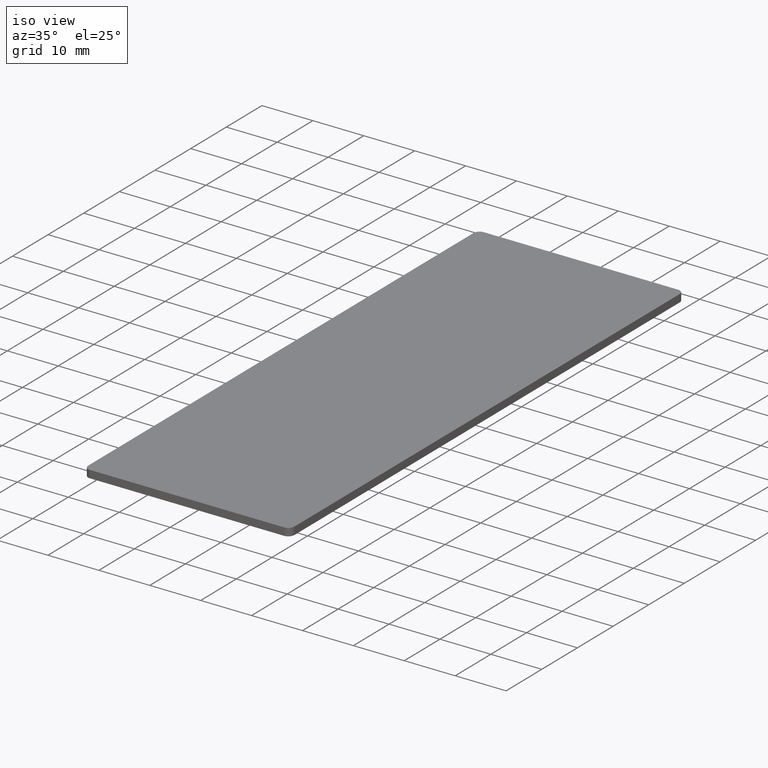
[diagram: clean part render]
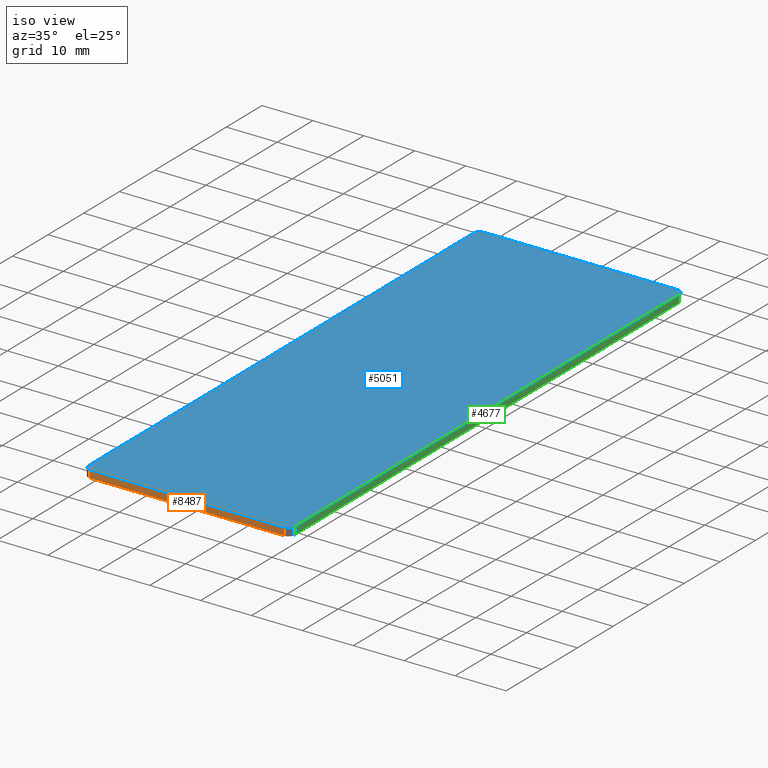
[diagram: same view with three faces highlighted in distinct colors, each labeled with its STEP entity id]
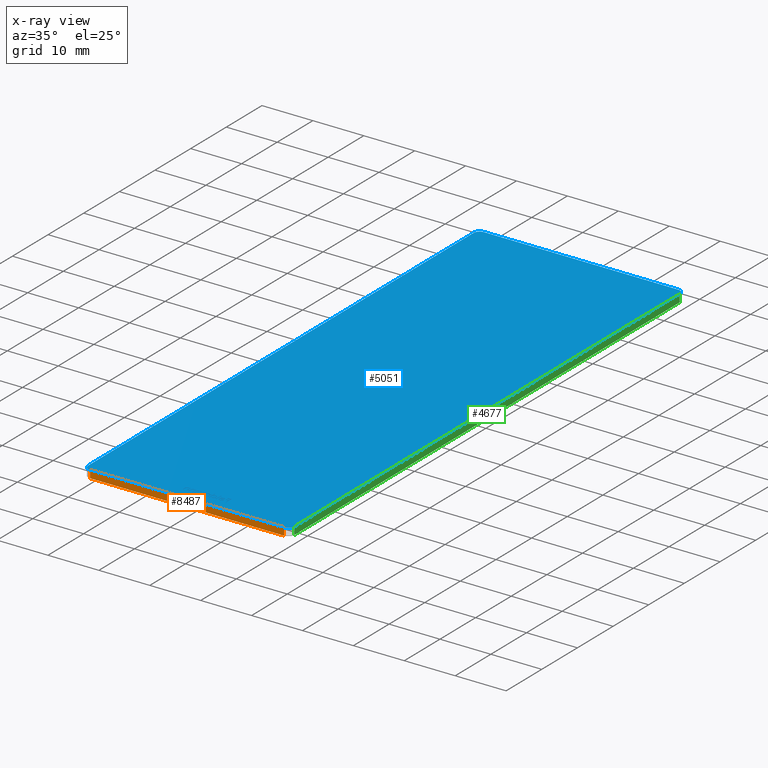
[diagram: x-ray of the same camera — body ghosted, the three highlighted faces saturated]
A machine part, iso view with three faces highlighted in distinct colors.
The next image is the same camera in x-ray (body ghosted, the three faces saturated) — at least one of them is partly hidden behind the body in this view.
Their STEP definitions:

[orange] entity #8487 — the highlighted planar face has unit normal (0, 1, 0).
#593 = LINE ( 'NONE', #773, #6514 ) ;
#595 = EDGE_LOOP ( 'NONE', ( #7902, #2261, #6565, #9142 ) ) ;
#773 = CARTESIAN_POINT ( 'NONE',  ( 19.05000000000000800, -55.25000000000000000, 1.500000000000000000 ) ) ;
#800 = CARTESIAN_POINT ( 'NONE',  ( -20.24999999999999300, -55.25000000000000000, 1.500000000000000000 ) ) ;
#1103 = CARTESIAN_POINT ( 'NONE',  ( -20.24999999999999300, -55.25000000000000000, 1.500000000000000000 ) ) ;
#1496 = DIRECTION ( 'NONE',  ( 1.000000000000000000, 0.0000000000000000000, 0.0000000000000000000 ) ) ;
#1512 = EDGE_CURVE ( 'NONE', #5554, #8553, #593, .T. ) ;
#1730 = VERTEX_POINT ( 'NONE', #9555 ) ;
#2261 = ORIENTED_EDGE ( 'NONE', *, *, #1512, .T. ) ;
#2639 = DIRECTION ( 'NONE',  ( -0.0000000000000000000, -0.0000000000000000000, 1.000000000000000000 ) ) ;
#2976 = LINE ( 'NONE', #9110, #8623 ) ;
#3019 = PLANE ( 'NONE',  #5777 ) ;
#3647 = EDGE_CURVE ( 'NONE', #4414, #1730, #2976, .T. ) ;
#4085 = EDGE_CURVE ( 'NONE', #1730, #5554, #10586, .T. ) ;
#4414 = VERTEX_POINT ( 'NONE', #9554 ) ;
#4635 = DIRECTION ( 'NONE',  ( -0.0000000000000000000, 0.0000000000000000000, -1.000000000000000000 ) ) ;
#4948 = DIRECTION ( 'NONE',  ( 0.0000000000000000000, 1.000000000000000000, 0.0000000000000000000 ) ) ;
#5036 = EDGE_CURVE ( 'NONE', #4414, #8553, #10566, .T. ) ;
#5554 = VERTEX_POINT ( 'NONE', #10626 ) ;
#5777 = AXIS2_PLACEMENT_3D ( 'NONE', #1103, #4948, #8725 ) ;
#6514 = VECTOR ( 'NONE', #2639, 1000.000000000000000 ) ;
#6565 = ORIENTED_EDGE ( 'NONE', *, *, #5036, .F. ) ;
#6922 = VECTOR ( 'NONE', #9642, 1000.000000000000000 ) ;
#7902 = ORIENTED_EDGE ( 'NONE', *, *, #4085, .T. ) ;
#8016 = VECTOR ( 'NONE', #1496, 1000.000000000000000 ) ;
#8487 = ADVANCED_FACE ( 'NONE', ( #11752 ), #3019, .F. ) ;
#8553 = VERTEX_POINT ( 'NONE', #9915 ) ;
#8623 = VECTOR ( 'NONE', #4635, 1000.000000000000000 ) ;
#8725 = DIRECTION ( 'NONE',  ( 0.0000000000000000000, -0.0000000000000000000, 1.000000000000000000 ) ) ;
#9110 = CARTESIAN_POINT ( 'NONE',  ( -19.04999999999999400, -55.25000000000000000, 1.500000000000000000 ) ) ;
#9142 = ORIENTED_EDGE ( 'NONE', *, *, #3647, .T. ) ;
#9554 = CARTESIAN_POINT ( 'NONE',  ( -19.04999999999999400, -55.25000000000000000, 1.500000000000000000 ) ) ;
#9555 = CARTESIAN_POINT ( 'NONE',  ( -19.04999999999999400, -55.25000000000000000, 0.0000000000000000000 ) ) ;
#9642 = DIRECTION ( 'NONE',  ( 1.000000000000000000, 0.0000000000000000000, 0.0000000000000000000 ) ) ;
#9915 = CARTESIAN_POINT ( 'NONE',  ( 19.05000000000000800, -55.25000000000000000, 1.500000000000000000 ) ) ;
#10566 = LINE ( 'NONE', #800, #6922 ) ;
#10586 = LINE ( 'NONE', #11191, #8016 ) ;
#10626 = CARTESIAN_POINT ( 'NONE',  ( 19.05000000000000800, -55.25000000000000000, 0.0000000000000000000 ) ) ;
#11191 = CARTESIAN_POINT ( 'NONE',  ( -20.24999999999999300, -55.25000000000000000, 0.0000000000000000000 ) ) ;
#11752 = FACE_OUTER_BOUND ( 'NONE', #595, .T. ) ;

[blue] entity #5051 — the highlighted planar face has unit normal (-0, 0, 1).
#145 = AXIS2_PLACEMENT_3D ( 'NONE', #6803, #8795, #4000 ) ;
#489 = VECTOR ( 'NONE', #3216, 1000.000000000000000 ) ;
#537 = CARTESIAN_POINT ( 'NONE',  ( 19.04999999999999400, 55.25000000000000000, 1.500000000000000000 ) ) ;
#800 = CARTESIAN_POINT ( 'NONE',  ( -20.24999999999999300, -55.25000000000000000, 1.500000000000000000 ) ) ;
#887 = CARTESIAN_POINT ( 'NONE',  ( -19.05000000000000800, 55.25000000000000000, 1.500000000000000000 ) ) ;
#889 = ORIENTED_EDGE ( 'NONE', *, *, #1109, .T. ) ;
#964 = DIRECTION ( 'NONE',  ( -0.0000000000000000000, 0.0000000000000000000, 1.000000000000000000 ) ) ;
#1090 = ORIENTED_EDGE ( 'NONE', *, *, #11529, .T. ) ;
#1092 = EDGE_CURVE ( 'NONE', #8382, #6534, #4112, .T. ) ;
#1109 = EDGE_CURVE ( 'NONE', #8553, #2391, #10937, .T. ) ;
#1139 = CARTESIAN_POINT ( 'NONE',  ( -20.25000000000000700, 55.25000000000000000, 1.500000000000000000 ) ) ;
#1224 = VECTOR ( 'NONE', #7146, 1000.000000000000000 ) ;
#1441 = ORIENTED_EDGE ( 'NONE', *, *, #9227, .T. ) ;
#1589 = VERTEX_POINT ( 'NONE', #3795 ) ;
#1658 = EDGE_CURVE ( 'NONE', #3061, #1589, #7428, .T. ) ;
#1877 = LINE ( 'NONE', #4191, #7064 ) ;
#1888 = DIRECTION ( 'NONE',  ( 1.000000000000000000, 0.0000000000000000000, 0.0000000000000000000 ) ) ;
#2387 = CARTESIAN_POINT ( 'NONE',  ( 19.04999999999999400, 54.05000000000000400, 1.500000000000000000 ) ) ;
#2391 = VERTEX_POINT ( 'NONE', #12371 ) ;
#3061 = VERTEX_POINT ( 'NONE', #887 ) ;
#3216 = DIRECTION ( 'NONE',  ( 1.255908398897235900E-016, -1.000000000000000000, 0.0000000000000000000 ) ) ;
#3280 = FACE_OUTER_BOUND ( 'NONE', #10960, .T. ) ;
#3288 = AXIS2_PLACEMENT_3D ( 'NONE', #2387, #964, #7734 ) ;
#3795 = CARTESIAN_POINT ( 'NONE',  ( -20.25000000000000700, 54.05000000000000400, 1.500000000000000000 ) ) ;
#3868 = PLANE ( 'NONE',  #7054 ) ;
#3935 = DIRECTION ( 'NONE',  ( -0.0000000000000000000, 0.0000000000000000000, 1.000000000000000000 ) ) ;
#3983 = ORIENTED_EDGE ( 'NONE', *, *, #5036, .T. ) ;
#4000 = DIRECTION ( 'NONE',  ( 1.000000000000000000, 0.0000000000000000000, 0.0000000000000000000 ) ) ;
#4002 = ORIENTED_EDGE ( 'NONE', *, *, #6447, .F. ) ;
#4112 = CIRCLE ( 'NONE', #3288, 1.199999999999999700 ) ;
#4191 = CARTESIAN_POINT ( 'NONE',  ( -20.25000000000000700, 55.25000000000000000, 1.500000000000000000 ) ) ;
#4376 = CARTESIAN_POINT ( 'NONE',  ( -20.24999999999999300, -54.05000000000000400, 1.500000000000000000 ) ) ;
#4414 = VERTEX_POINT ( 'NONE', #9554 ) ;
#4705 = CARTESIAN_POINT ( 'NONE',  ( 20.24999999999999300, 54.05000000000000400, 1.500000000000000000 ) ) ;
#4758 = CARTESIAN_POINT ( 'NONE',  ( 0.0000000000000000000, 0.0000000000000000000, 1.500000000000000000 ) ) ;
#4996 = DIRECTION ( 'NONE',  ( 1.000000000000000000, 0.0000000000000000000, 0.0000000000000000000 ) ) ;
#5032 = DIRECTION ( 'NONE',  ( 1.000000000000000000, 0.0000000000000000000, 0.0000000000000000000 ) ) ;
#5036 = EDGE_CURVE ( 'NONE', #4414, #8553, #10566, .T. ) ;
#5051 = ADVANCED_FACE ( 'NONE', ( #3280 ), #3868, .T. ) ;
#5499 = AXIS2_PLACEMENT_3D ( 'NONE', #9679, #3935, #4996 ) ;
#5826 = ORIENTED_EDGE ( 'NONE', *, *, #1092, .T. ) ;
#6294 = CIRCLE ( 'NONE', #145, 1.199999999999999700 ) ;
#6447 = EDGE_CURVE ( 'NONE', #3061, #6534, #1877, .T. ) ;
#6534 = VERTEX_POINT ( 'NONE', #537 ) ;
#6746 = ORIENTED_EDGE ( 'NONE', *, *, #11899, .F. ) ;
#6803 = CARTESIAN_POINT ( 'NONE',  ( -19.04999999999999400, -54.05000000000000400, 1.500000000000000000 ) ) ;
#6922 = VECTOR ( 'NONE', #9642, 1000.000000000000000 ) ;
#7049 = CARTESIAN_POINT ( 'NONE',  ( 20.24999999999999300, 55.25000000000000000, 1.500000000000000000 ) ) ;
#7054 = AXIS2_PLACEMENT_3D ( 'NONE', #4758, #8734, #1888 ) ;
#7064 = VECTOR ( 'NONE', #5032, 1000.000000000000000 ) ;
#7146 = DIRECTION ( 'NONE',  ( 1.255908398897235900E-016, -1.000000000000000000, 0.0000000000000000000 ) ) ;
#7428 = CIRCLE ( 'NONE', #9804, 1.199999999999999700 ) ;
#7732 = VERTEX_POINT ( 'NONE', #4376 ) ;
#7734 = DIRECTION ( 'NONE',  ( 1.000000000000000000, 0.0000000000000000000, 0.0000000000000000000 ) ) ;
#7927 = LINE ( 'NONE', #7049, #489 ) ;
#8382 = VERTEX_POINT ( 'NONE', #4705 ) ;
#8553 = VERTEX_POINT ( 'NONE', #9915 ) ;
#8734 = DIRECTION ( 'NONE',  ( -0.0000000000000000000, 0.0000000000000000000, 1.000000000000000000 ) ) ;
#8795 = DIRECTION ( 'NONE',  ( -0.0000000000000000000, 0.0000000000000000000, 1.000000000000000000 ) ) ;
#9227 = EDGE_CURVE ( 'NONE', #7732, #4414, #6294, .T. ) ;
#9554 = CARTESIAN_POINT ( 'NONE',  ( -19.04999999999999400, -55.25000000000000000, 1.500000000000000000 ) ) ;
#9642 = DIRECTION ( 'NONE',  ( 1.000000000000000000, 0.0000000000000000000, 0.0000000000000000000 ) ) ;
#9679 = CARTESIAN_POINT ( 'NONE',  ( 19.05000000000000800, -54.05000000000000400, 1.500000000000000000 ) ) ;
#9804 = AXIS2_PLACEMENT_3D ( 'NONE', #10360, #10196, #11347 ) ;
#9915 = CARTESIAN_POINT ( 'NONE',  ( 19.05000000000000800, -55.25000000000000000, 1.500000000000000000 ) ) ;
#10196 = DIRECTION ( 'NONE',  ( -0.0000000000000000000, 0.0000000000000000000, 1.000000000000000000 ) ) ;
#10360 = CARTESIAN_POINT ( 'NONE',  ( -19.05000000000000800, 54.05000000000000400, 1.500000000000000000 ) ) ;
#10566 = LINE ( 'NONE', #800, #6922 ) ;
#10621 = ORIENTED_EDGE ( 'NONE', *, *, #1658, .T. ) ;
#10937 = CIRCLE ( 'NONE', #5499, 1.199999999999999700 ) ;
#10960 = EDGE_LOOP ( 'NONE', ( #4002, #10621, #1090, #1441, #3983, #889, #6746, #5826 ) ) ;
#11271 = LINE ( 'NONE', #1139, #1224 ) ;
#11347 = DIRECTION ( 'NONE',  ( 1.000000000000000000, 0.0000000000000000000, 0.0000000000000000000 ) ) ;
#11529 = EDGE_CURVE ( 'NONE', #1589, #7732, #11271, .T. ) ;
#11899 = EDGE_CURVE ( 'NONE', #8382, #2391, #7927, .T. ) ;
#12371 = CARTESIAN_POINT ( 'NONE',  ( 20.25000000000000700, -54.05000000000000400, 1.500000000000000000 ) ) ;

[green] entity #4677 — the highlighted planar face has unit normal (1, 0, -0).
#35 = PLANE ( 'NONE',  #6406 ) ;
#55 = EDGE_LOOP ( 'NONE', ( #7598, #4561, #3161, #4728 ) ) ;
#336 = DIRECTION ( 'NONE',  ( -1.255908398897235900E-016, 1.000000000000000000, 0.0000000000000000000 ) ) ;
#476 = VERTEX_POINT ( 'NONE', #3475 ) ;
#489 = VECTOR ( 'NONE', #3216, 1000.000000000000000 ) ;
#562 = DIRECTION ( 'NONE',  ( 0.0000000000000000000, 0.0000000000000000000, -1.000000000000000000 ) ) ;
#1066 = CARTESIAN_POINT ( 'NONE',  ( 20.25000000000000700, -54.05000000000000400, 0.0000000000000000000 ) ) ;
#1520 = CARTESIAN_POINT ( 'NONE',  ( 20.25000000000000700, -54.05000000000000400, 0.0000000000000000000 ) ) ;
#1737 = EDGE_CURVE ( 'NONE', #476, #8382, #10010, .T. ) ;
#1959 = CARTESIAN_POINT ( 'NONE',  ( 20.24999999999999300, 55.25000000000000000, 1.500000000000000000 ) ) ;
#2210 = VECTOR ( 'NONE', #5657, 1000.000000000000000 ) ;
#2391 = VERTEX_POINT ( 'NONE', #12371 ) ;
#3161 = ORIENTED_EDGE ( 'NONE', *, *, #4419, .F. ) ;
#3216 = DIRECTION ( 'NONE',  ( 1.255908398897235900E-016, -1.000000000000000000, 0.0000000000000000000 ) ) ;
#3475 = CARTESIAN_POINT ( 'NONE',  ( 20.24999999999999300, 54.05000000000000400, 0.0000000000000000000 ) ) ;
#3862 = VERTEX_POINT ( 'NONE', #1066 ) ;
#4419 = EDGE_CURVE ( 'NONE', #476, #3862, #9980, .T. ) ;
#4561 = ORIENTED_EDGE ( 'NONE', *, *, #9914, .T. ) ;
#4677 = ADVANCED_FACE ( 'NONE', ( #8614 ), #35, .T. ) ;
#4705 = CARTESIAN_POINT ( 'NONE',  ( 20.24999999999999300, 54.05000000000000400, 1.500000000000000000 ) ) ;
#4728 = ORIENTED_EDGE ( 'NONE', *, *, #1737, .T. ) ;
#5211 = LINE ( 'NONE', #1520, #6575 ) ;
#5657 = DIRECTION ( 'NONE',  ( 1.255908398897235900E-016, -1.000000000000000000, 0.0000000000000000000 ) ) ;
#6406 = AXIS2_PLACEMENT_3D ( 'NONE', #1959, #9969, #336 ) ;
#6575 = VECTOR ( 'NONE', #562, 1000.000000000000000 ) ;
#7049 = CARTESIAN_POINT ( 'NONE',  ( 20.24999999999999300, 55.25000000000000000, 1.500000000000000000 ) ) ;
#7596 = VECTOR ( 'NONE', #12314, 1000.000000000000000 ) ;
#7598 = ORIENTED_EDGE ( 'NONE', *, *, #11899, .T. ) ;
#7927 = LINE ( 'NONE', #7049, #489 ) ;
#8382 = VERTEX_POINT ( 'NONE', #4705 ) ;
#8417 = CARTESIAN_POINT ( 'NONE',  ( 20.24999999999999300, 54.05000000000000400, 1.500000000000000000 ) ) ;
#8614 = FACE_OUTER_BOUND ( 'NONE', #55, .T. ) ;
#9472 = CARTESIAN_POINT ( 'NONE',  ( 20.24999999999999300, 55.25000000000000000, 0.0000000000000000000 ) ) ;
#9914 = EDGE_CURVE ( 'NONE', #2391, #3862, #5211, .T. ) ;
#9969 = DIRECTION ( 'NONE',  ( 1.000000000000000000, 1.255908398897235900E-016, -0.0000000000000000000 ) ) ;
#9980 = LINE ( 'NONE', #9472, #2210 ) ;
#10010 = LINE ( 'NONE', #8417, #7596 ) ;
#11899 = EDGE_CURVE ( 'NONE', #8382, #2391, #7927, .T. ) ;
#12314 = DIRECTION ( 'NONE',  ( 0.0000000000000000000, -0.0000000000000000000, 1.000000000000000000 ) ) ;
#12371 = CARTESIAN_POINT ( 'NONE',  ( 20.25000000000000700, -54.05000000000000400, 1.500000000000000000 ) ) ;